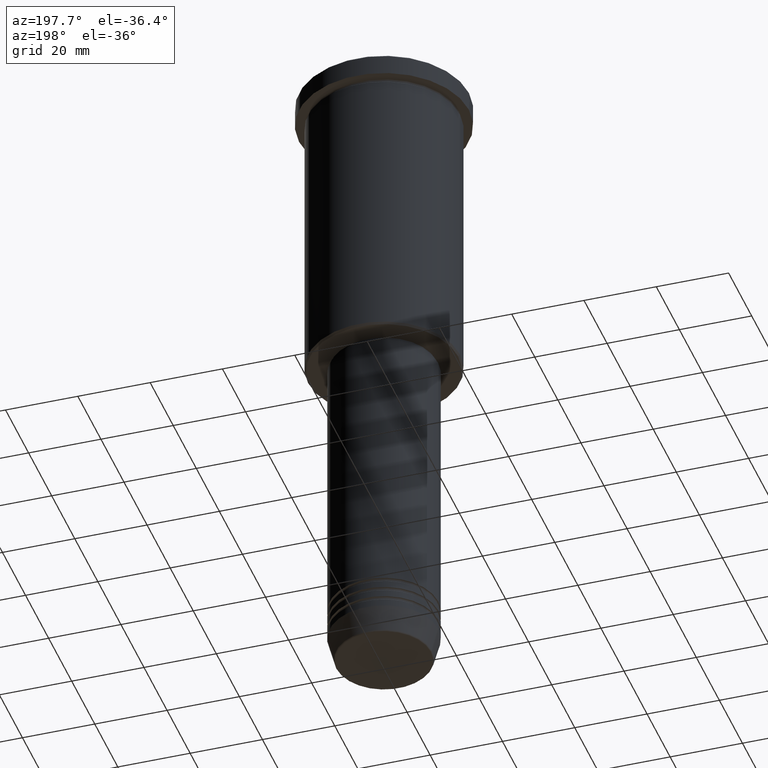
[diagram: clean part render]
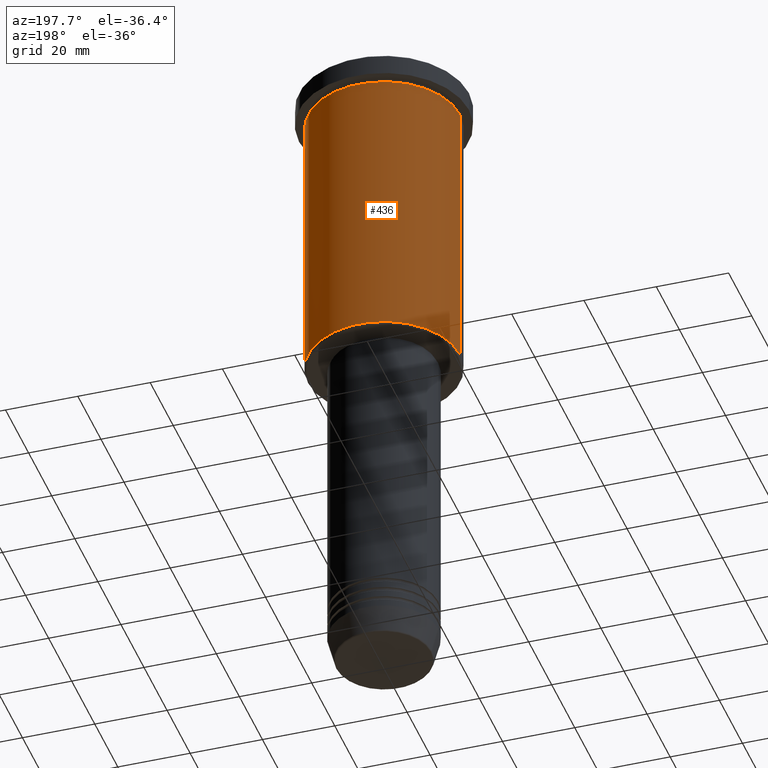
[diagram: same view with one face highlighted and labeled with its STEP entity id]
A machine part, auxiliary view. The second image highlights one B-rep face of the part: STEP entity #436.
In plain terms, the highlighted cylindrical surface (partial cylindrical patch) has radius 21 mm, axis along (-0, -0, 1).
Its self-contained STEP definition (entity closure, byte-faithful):
#84 = DIRECTION ( 'NONE',  ( -0.000000000000000000, -0.000000000000000000, 1.000000000000000000 ) ) ;
#109 = EDGE_LOOP ( 'NONE', ( #860, #662, #1143, #780 ) ) ;
#187 = EDGE_CURVE ( 'NONE', #497, #1023, #853, .T. ) ;
#214 = VERTEX_POINT ( 'NONE', #609 ) ;
#228 = DIRECTION ( 'NONE',  ( -0.000000000000000000, -0.000000000000000000, 1.000000000000000000 ) ) ;
#232 = CARTESIAN_POINT ( 'NONE',  ( -21.00000000000000000, 2.571758278209441661E-15, -85.49999999999995737 ) ) ;
#235 = CARTESIAN_POINT ( 'NONE',  ( 21.00000000000000000, 0.000000000000000000, -85.49999999999995737 ) ) ;
#257 = VERTEX_POINT ( 'NONE', #235 ) ;
#260 = CARTESIAN_POINT ( 'NONE',  ( 0.000000000000000000, 0.000000000000000000, -85.49999999999995737 ) ) ;
#283 = CYLINDRICAL_SURFACE ( 'NONE', #402, 21.00000000000000000 ) ;
#354 = CARTESIAN_POINT ( 'NONE',  ( -21.00000000000000000, 2.571758278209441661E-15, -6.999999999999994671 ) ) ;
#402 = AXIS2_PLACEMENT_3D ( 'NONE', #645, #84, #457 ) ;
#430 = EDGE_CURVE ( 'NONE', #257, #497, #825, .T. ) ;
#436 = ADVANCED_FACE ( 'NONE', ( #539 ), #283, .T. ) ;
#451 = DIRECTION ( 'NONE',  ( -0.000000000000000000, -0.000000000000000000, 1.000000000000000000 ) ) ;
#455 = VECTOR ( 'NONE', #228, 1000.000000000000000 ) ;
#457 = DIRECTION ( 'NONE',  ( 1.000000000000000000, 0.000000000000000000, 0.000000000000000000 ) ) ;
#465 = DIRECTION ( 'NONE',  ( -0.000000000000000000, -0.000000000000000000, 1.000000000000000000 ) ) ;
#497 = VERTEX_POINT ( 'NONE', #232 ) ;
#533 = CARTESIAN_POINT ( 'NONE',  ( 0.000000000000000000, 0.000000000000000000, -6.999999999999994671 ) ) ;
#539 = FACE_OUTER_BOUND ( 'NONE', #109, .T. ) ;
#540 = CIRCLE ( 'NONE', #787, 21.00000000000000000 ) ;
#609 = CARTESIAN_POINT ( 'NONE',  ( 21.00000000000000000, 0.000000000000000000, -6.999999999999994671 ) ) ;
#641 = AXIS2_PLACEMENT_3D ( 'NONE', #260, #451, #804 ) ;
#645 = CARTESIAN_POINT ( 'NONE',  ( 0.000000000000000000, 0.000000000000000000, 0.000000000000000000 ) ) ;
#662 = ORIENTED_EDGE ( 'NONE', *, *, #187, .T. ) ;
#687 = EDGE_CURVE ( 'NONE', #214, #1023, #540, .T. ) ;
#703 = DIRECTION ( 'NONE',  ( -0.000000000000000000, -0.000000000000000000, 1.000000000000000000 ) ) ;
#763 = CARTESIAN_POINT ( 'NONE',  ( -21.00000000000000000, 2.571758278209441661E-15, 0.000000000000000000 ) ) ;
#773 = EDGE_CURVE ( 'NONE', #257, #214, #927, .T. ) ;
#780 = ORIENTED_EDGE ( 'NONE', *, *, #773, .F. ) ;
#787 = AXIS2_PLACEMENT_3D ( 'NONE', #533, #703, #975 ) ;
#804 = DIRECTION ( 'NONE',  ( -1.000000000000000000, 0.000000000000000000, 0.000000000000000000 ) ) ;
#825 = CIRCLE ( 'NONE', #641, 21.00000000000000000 ) ;
#853 = LINE ( 'NONE', #763, #455 ) ;
#857 = VECTOR ( 'NONE', #465, 1000.000000000000000 ) ;
#860 = ORIENTED_EDGE ( 'NONE', *, *, #430, .T. ) ;
#927 = LINE ( 'NONE', #1024, #857 ) ;
#975 = DIRECTION ( 'NONE',  ( 1.000000000000000000, 0.000000000000000000, 0.000000000000000000 ) ) ;
#1023 = VERTEX_POINT ( 'NONE', #354 ) ;
#1024 = CARTESIAN_POINT ( 'NONE',  ( 21.00000000000000000, 0.000000000000000000, 0.000000000000000000 ) ) ;
#1143 = ORIENTED_EDGE ( 'NONE', *, *, #687, .F. ) ;